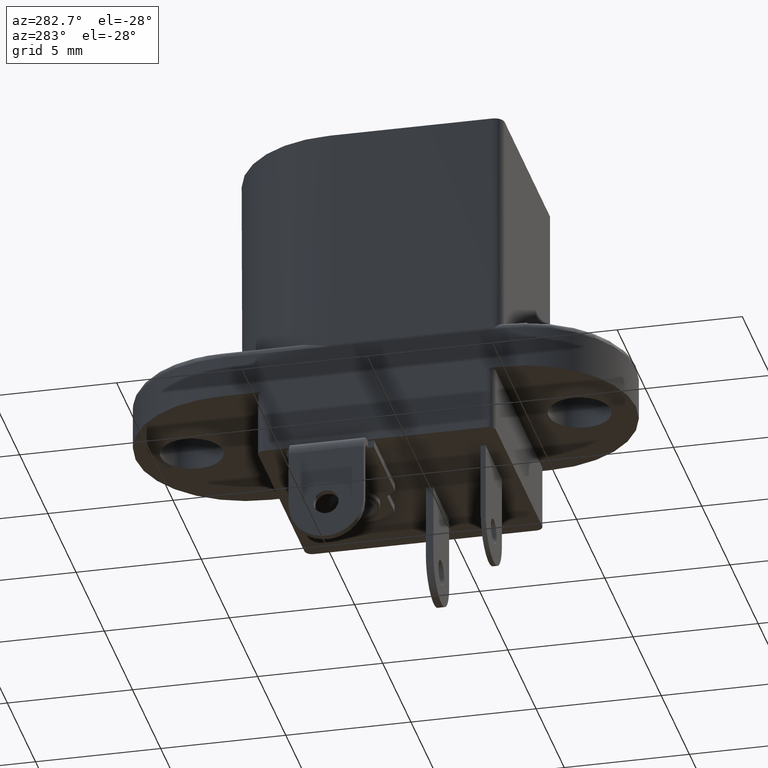
[diagram: clean part render]
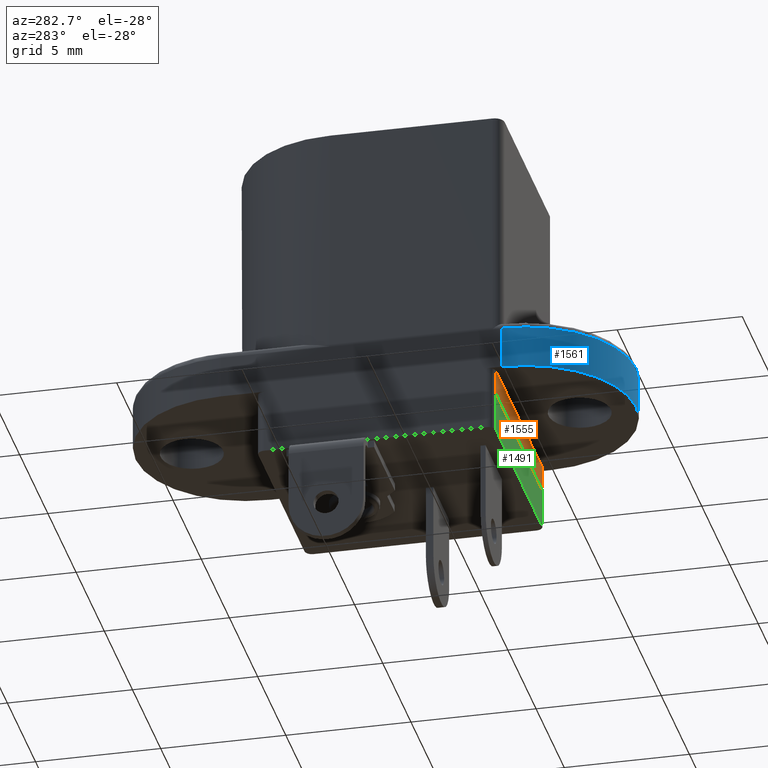
[diagram: same view with three faces highlighted in distinct colors, each labeled with its STEP entity id]
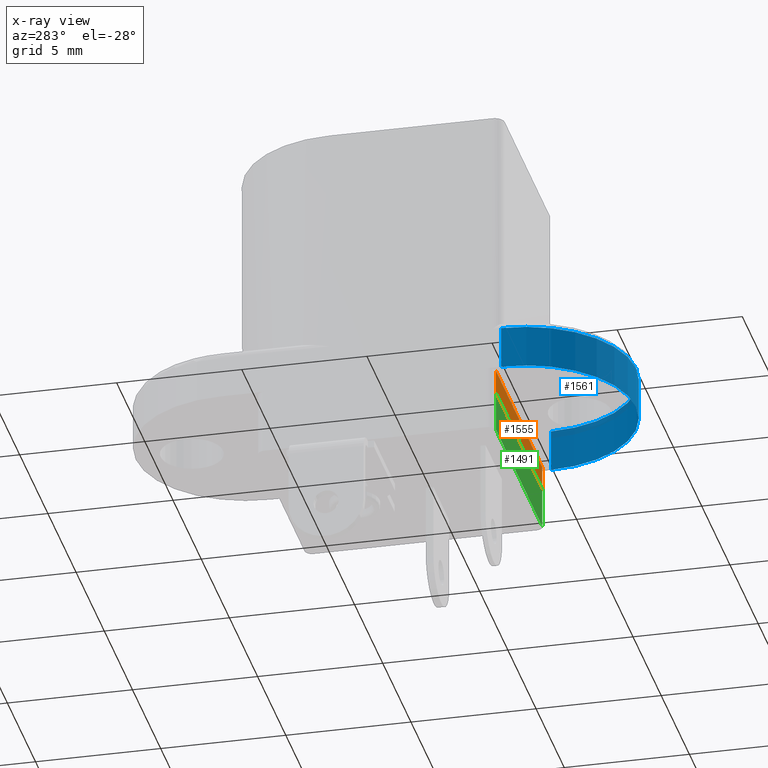
[diagram: x-ray of the same camera — body ghosted, the three highlighted faces saturated]
A machine part, auxiliary view with three faces highlighted in distinct colors.
The next image is the same camera in x-ray (body ghosted, the three faces saturated) — at least one of them is partly hidden behind the body in this view.
Their STEP definitions:

[orange] entity #1555 — the highlighted planar face has unit normal (0, 1, 0).
#82=PLANE('',#1715);
#214=LINE('',#2758,#348);
#215=LINE('',#2762,#349);
#216=LINE('',#2791,#350);
#219=LINE('',#2988,#353);
#348=VECTOR('',#2099,1000.);
#349=VECTOR('',#2104,1000.);
#350=VECTOR('',#2123,1000.);
#353=VECTOR('',#2138,1000.);
#461=FACE_OUTER_BOUND('',#557,.T.);
#557=EDGE_LOOP('',(#1362,#1363,#1364,#1365));
#765=VERTEX_POINT('',#2755);
#766=VERTEX_POINT('',#2757);
#767=VERTEX_POINT('',#2761);
#770=VERTEX_POINT('',#2789);
#962=EDGE_CURVE('',#765,#766,#214,.T.);
#964=EDGE_CURVE('',#766,#767,#215,.T.);
#972=EDGE_CURVE('',#770,#765,#216,.T.);
#977=EDGE_CURVE('',#767,#770,#219,.T.);
#1362=ORIENTED_EDGE('',*,*,#964,.F.);
#1363=ORIENTED_EDGE('',*,*,#962,.F.);
#1364=ORIENTED_EDGE('',*,*,#972,.F.);
#1365=ORIENTED_EDGE('',*,*,#977,.F.);
#1555=ADVANCED_FACE('',(#461),#82,.F.);
#1715=AXIS2_PLACEMENT_3D('',#2987,#2136,#2137);
#2099=DIRECTION('',(-1.,0.,0.));
#2104=DIRECTION('',(0.,0.,1.));
#2123=DIRECTION('',(0.,0.,-1.));
#2136=DIRECTION('center_axis',(0.,1.,0.));
#2137=DIRECTION('ref_axis',(0.,0.,1.));
#2138=DIRECTION('',(1.,0.,0.));
#2755=CARTESIAN_POINT('',(4.1,-6.575,-3.));
#2757=CARTESIAN_POINT('',(-4.1,-6.575,-3.));
#2758=CARTESIAN_POINT('',(4.1,-6.575,-3.));
#2761=CARTESIAN_POINT('',(-4.1,-6.575,-2.));
#2762=CARTESIAN_POINT('',(-4.1,-6.575,-3.));
#2789=CARTESIAN_POINT('',(4.1,-6.575,-2.));
#2791=CARTESIAN_POINT('',(4.1,-6.575,-3.));
#2987=CARTESIAN_POINT('Origin',(4.1,-6.575,-3.));
#2988=CARTESIAN_POINT('',(4.1,-6.575,-2.));

[blue] entity #1561 — the highlighted cylindrical surface (partial cylindrical patch) has radius 4.4 mm, axis along (0, 0, 1).
#196=LINE('',#2500,#330);
#201=LINE('',#2704,#335);
#330=VECTOR('',#2047,1000.);
#335=VECTOR('',#2064,1000.);
#386=CYLINDRICAL_SURFACE('',#1724,4.4);
#467=FACE_OUTER_BOUND('',#566,.T.);
#566=EDGE_LOOP('',(#1392,#1393,#1394,#1395));
#632=CIRCLE('',#1720,4.4);
#633=CIRCLE('',#1722,4.4);
#739=VERTEX_POINT('',#2483);
#746=VERTEX_POINT('',#2498);
#750=VERTEX_POINT('',#2700);
#752=VERTEX_POINT('',#2703);
#933=EDGE_CURVE('',#739,#746,#196,.T.);
#941=EDGE_CURVE('',#752,#750,#201,.T.);
#979=EDGE_CURVE('',#739,#750,#632,.T.);
#980=EDGE_CURVE('',#746,#752,#633,.T.);
#1392=ORIENTED_EDGE('',*,*,#933,.T.);
#1393=ORIENTED_EDGE('',*,*,#980,.T.);
#1394=ORIENTED_EDGE('',*,*,#941,.T.);
#1395=ORIENTED_EDGE('',*,*,#979,.F.);
#1561=ADVANCED_FACE('',(#467),#386,.T.);
#1720=AXIS2_PLACEMENT_3D('',#2993,#2147,#2148);
#1722=AXIS2_PLACEMENT_3D('',#2995,#2151,#2152);
#1724=AXIS2_PLACEMENT_3D('',#2997,#2155,#2156);
#2047=DIRECTION('',(0.,0.,-1.));
#2064=DIRECTION('',(0.,0.,1.));
#2147=DIRECTION('center_axis',(0.,0.,1.));
#2148=DIRECTION('ref_axis',(1.,0.,0.));
#2151=DIRECTION('center_axis',(0.,0.,1.));
#2152=DIRECTION('ref_axis',(1.,0.,0.));
#2155=DIRECTION('center_axis',(0.,0.,1.));
#2156=DIRECTION('ref_axis',(1.,0.,0.));
#2483=CARTESIAN_POINT('',(-4.4,-6.84999999999998,-0.3));
#2498=CARTESIAN_POINT('',(-4.4,-6.85,-2.));
#2500=CARTESIAN_POINT('',(-4.4,-6.85,-2.));
#2700=CARTESIAN_POINT('',(4.4,-6.85,-0.3));
#2703=CARTESIAN_POINT('',(4.4,-6.85,-2.));
#2704=CARTESIAN_POINT('',(4.4,-6.85,-2.));
#2993=CARTESIAN_POINT('Origin',(8.38883057415937E-16,-6.85,-0.3));
#2995=CARTESIAN_POINT('Origin',(8.38883057415937E-16,-6.85,-2.));
#2997=CARTESIAN_POINT('Origin',(8.38883057415937E-16,-6.85,-2.));

[green] entity #1491 — the highlighted planar face has unit normal (0, 1, 0).
#44=PLANE('',#1607);
#95=LINE('',#2218,#229);
#105=LINE('',#2242,#239);
#106=LINE('',#2244,#240);
#107=LINE('',#2245,#241);
#229=VECTOR('',#1788,1000.);
#239=VECTOR('',#1808,1000.);
#240=VECTOR('',#1809,1000.);
#241=VECTOR('',#1810,1000.);
#397=FACE_OUTER_BOUND('',#479,.T.);
#479=EDGE_LOOP('',(#1032,#1033,#1034,#1035));
#655=VERTEX_POINT('',#2215);
#656=VERTEX_POINT('',#2217);
#665=VERTEX_POINT('',#2241);
#666=VERTEX_POINT('',#2243);
#799=EDGE_CURVE('',#656,#655,#95,.T.);
#811=EDGE_CURVE('',#665,#655,#105,.T.);
#812=EDGE_CURVE('',#666,#665,#106,.T.);
#813=EDGE_CURVE('',#656,#666,#107,.T.);
#1032=ORIENTED_EDGE('',*,*,#811,.F.);
#1033=ORIENTED_EDGE('',*,*,#812,.F.);
#1034=ORIENTED_EDGE('',*,*,#813,.F.);
#1035=ORIENTED_EDGE('',*,*,#799,.T.);
#1491=ADVANCED_FACE('',(#397),#44,.F.);
#1607=AXIS2_PLACEMENT_3D('',#2240,#1806,#1807);
#1788=DIRECTION('',(-1.,0.,0.));
#1806=DIRECTION('center_axis',(0.,1.,0.));
#1807=DIRECTION('ref_axis',(0.,0.,1.));
#1808=DIRECTION('',(0.,0.,1.));
#1809=DIRECTION('',(-1.,0.,0.));
#1810=DIRECTION('',(0.,0.,-1.));
#2215=CARTESIAN_POINT('',(-4.1,-6.575,-3.));
#2217=CARTESIAN_POINT('',(4.1,-6.575,-3.));
#2218=CARTESIAN_POINT('',(4.1,-6.575,-3.));
#2240=CARTESIAN_POINT('Origin',(4.1,-6.575,-4.6));
#2241=CARTESIAN_POINT('',(-4.1,-6.575,-4.6));
#2242=CARTESIAN_POINT('',(-4.1,-6.575,-4.6));
#2243=CARTESIAN_POINT('',(4.1,-6.575,-4.6));
#2244=CARTESIAN_POINT('',(4.1,-6.575,-4.6));
#2245=CARTESIAN_POINT('',(4.1,-6.575,-4.6));